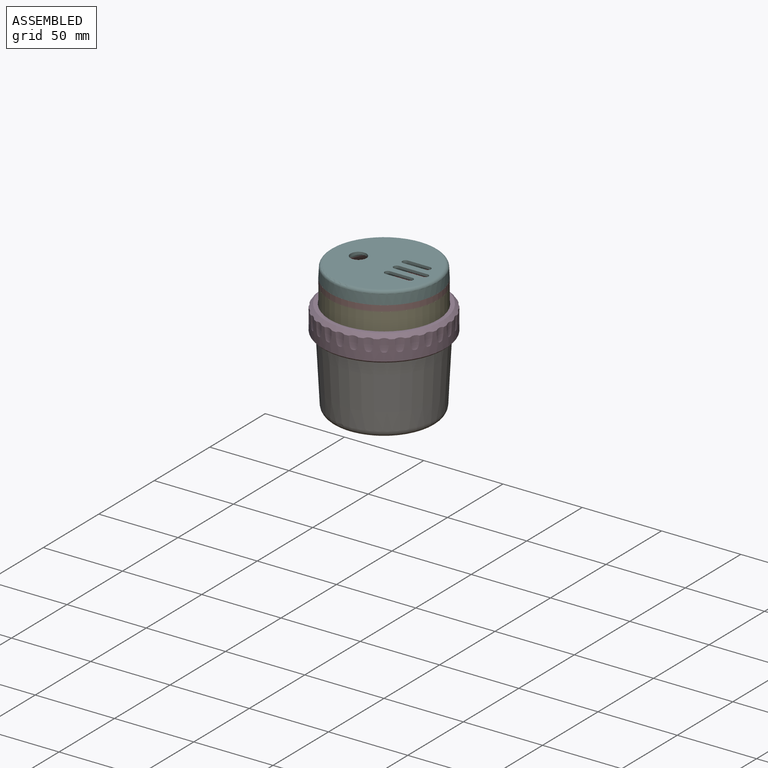
[diagram: assembled view]
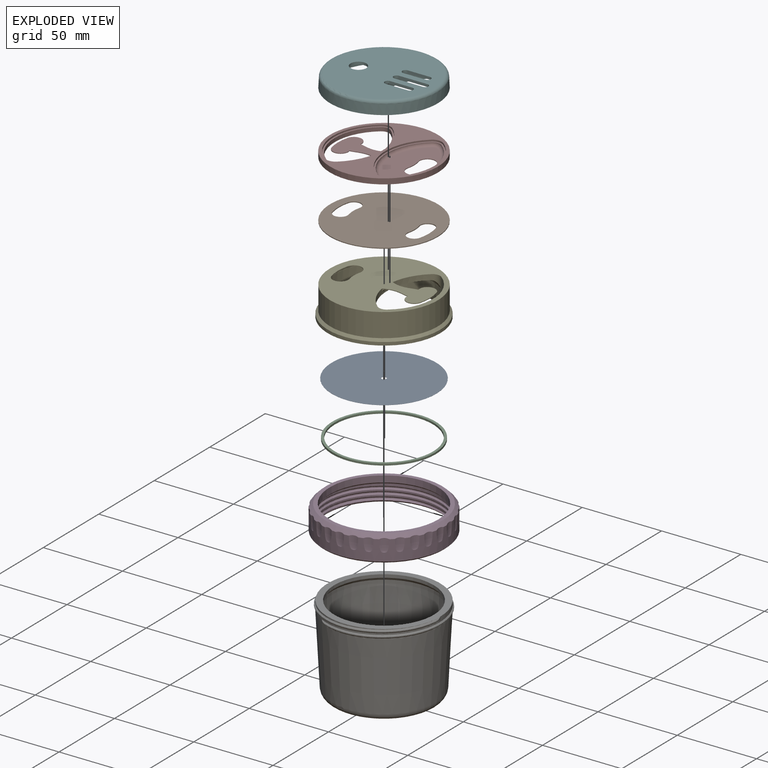
[diagram: exploded view]
GUIDED TOUR — MATED ASSEMBLY (Onshape document a46ee36c21d35e9a1c66735c, AutoMate assembly a46ee36c21d35e9a1c66735c_d8bfd531854b0f1bbb1e42d2_bb6d3bad4499264e819cd1c1_default)

This assembly has 8 components, labeled P0..P7 below (a component is one placed occurrence of a part; the same part can appear more than once), held together by 7 mates. A mate is a constraint between two components; its type names the relative motion it leaves free:
  CYLINDRICAL — leaves both rotation about and translation along the listed axis free,
  FASTENED — locks the two components together rigidly (no relative motion).
Axis/direction vectors are unit vectors and 'through' points are millimeter coordinates, both in the assembly's world frame.

MATES
  1. FASTENED "Fastened 3": P5 <-> P7, direction (0.000, 0.000, -1.000) through (0.00, 0.00, 3.40) mm
  2. CYLINDRICAL "Cylindrical 1": P3 <-> P4, axis (0.000, 0.000, 1.000) through (0.00, 0.00, -11.42) mm
  3. FASTENED "Fastened 4": P0 <-> P4, direction (0.000, 0.000, 1.000) through (0.00, 0.00, -17.90) mm
  4. FASTENED "Fastened 6": P6 <-> P2, direction (0.000, 0.000, 1.000) through (0.00, 0.00, -19.20) mm
  5. FASTENED "Fastened 5": P0 <-> P2, direction (0.000, 0.000, -1.000) through (0.00, 0.00, -18.00) mm
  6. FASTENED "Fastened 1": P1 <-> P7, direction (0.000, 0.000, 1.000) through (0.00, 0.00, 0.00) mm
  7. FASTENED "Fastened 2": P4 <-> P1, direction (0.000, 0.000, 1.000) through (0.00, 0.00, -0.50) mm

ASSEMBLY ORDER
  1. P4 — the base component [order heuristic]
  2. P1 [order verified]
  3. P7 [order verified]
  4. P0 — core [order heuristic]
  5. P2 — core [order heuristic]
  6. P3 — core [order heuristic]
  7. P5 [order verified]
  8. P6 — core [order heuristic]
Order-tag legend:
  [order verified] — this step's position reverses a verified removal order: the component was checked to insert without passing through the ones already placed.
  [order heuristic] — the first 5 components form the assembly's core: parts whose collision-free extraction could not be verified, listed in mate-graph order.

Of the 8 components, 4 carry the full construction recipe — the FeatureScript program that regenerates the part's solid from scratch; the rest are supplied as boundary geometry only.
Each toured component is shown spotlighted twice — in the assembled view, then in the exploded view, where a leader line traces a displaced component back to its assembled socket (saturated green if recipe-attached, orange if geometry-only; every other component desaturated gray) — followed by its recipe or geometry summary and the mates that hold it.
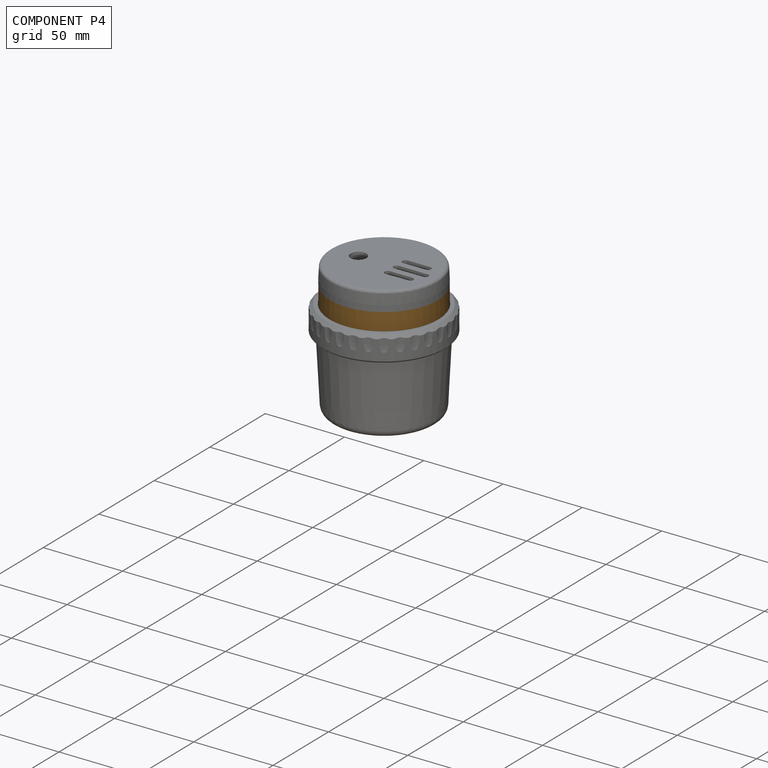
[diagram: component P4 — assembled]
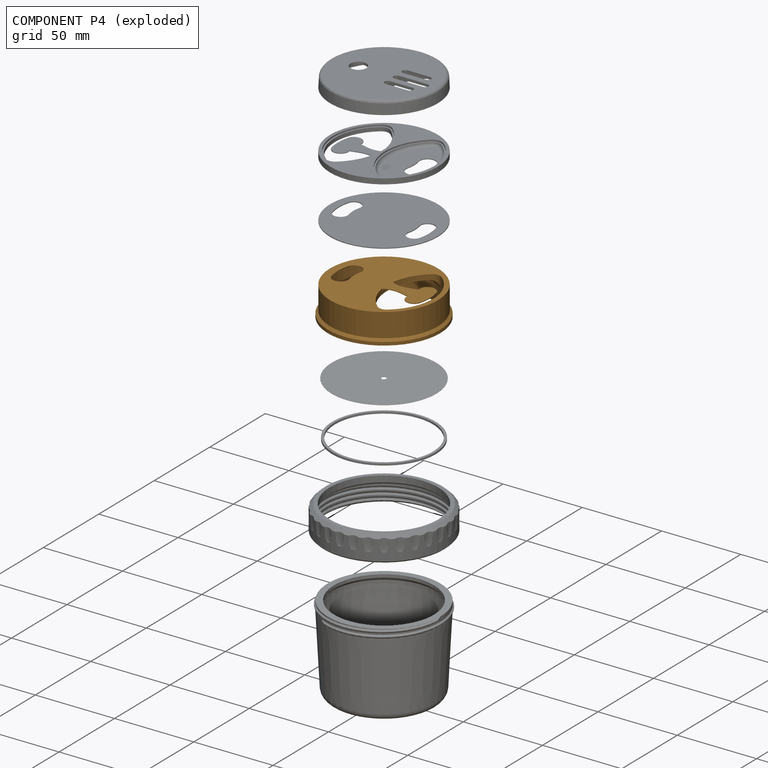
[diagram: component P4 — exploded]
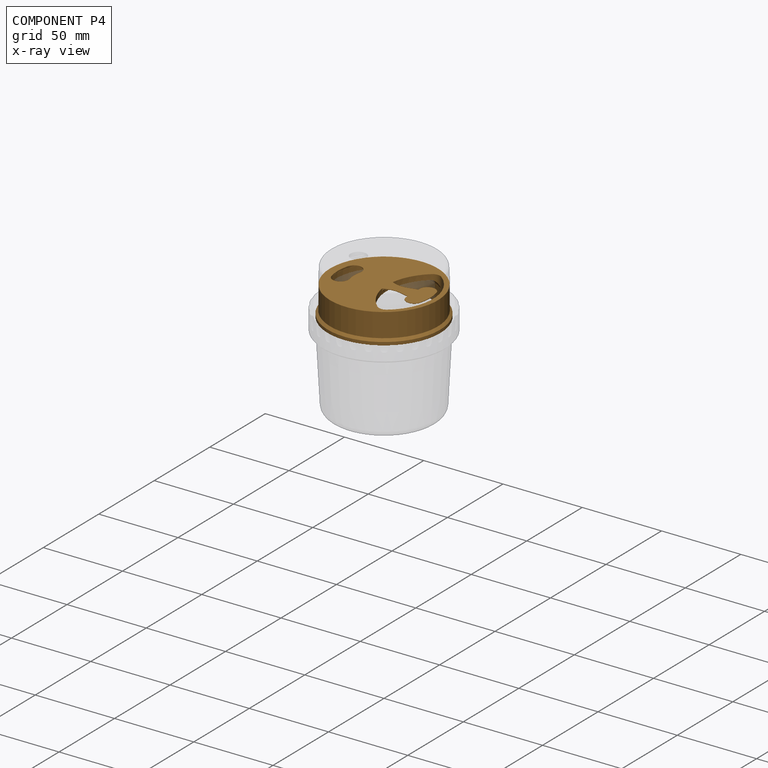
[diagram: component P4 — x-ray view]
COMPONENT P4 — geometry summary (no construction recipe available for this part):
  bounding box: 71.0 x 71.0 x 18.4 mm
  B-rep topology: 1 solid, 33 faces, 170 edges
  volume: 15465 mm^3 (17% of its bounding box)
  symmetry: mirror-symmetric across its y mid-plane
Held by: CYLINDRICAL mate "Cylindrical 1" to P3; FASTENED mate "Fastened 4" to P0; FASTENED mate "Fastened 2" to P1.
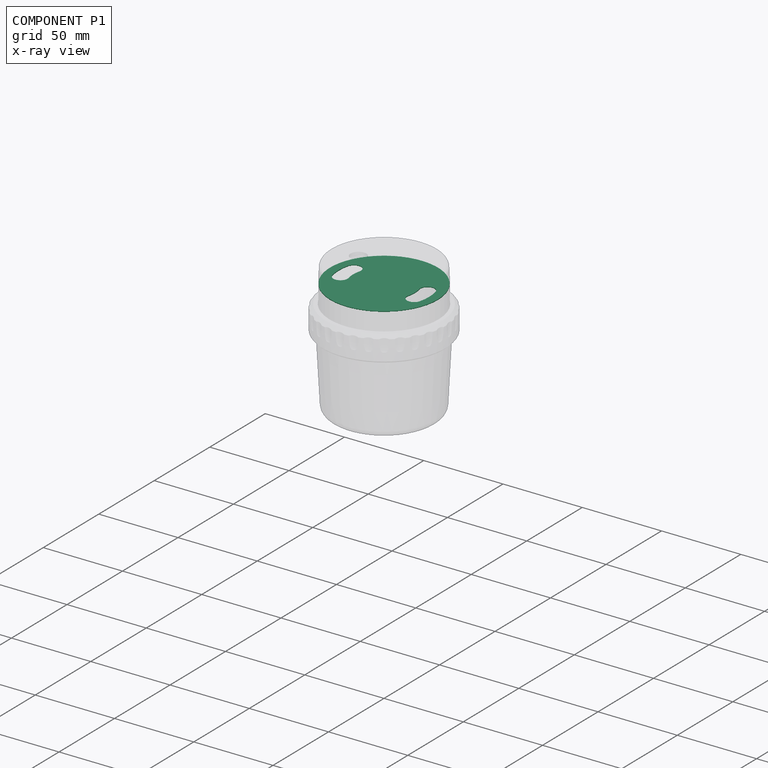
[diagram: component P1 — x-ray view]
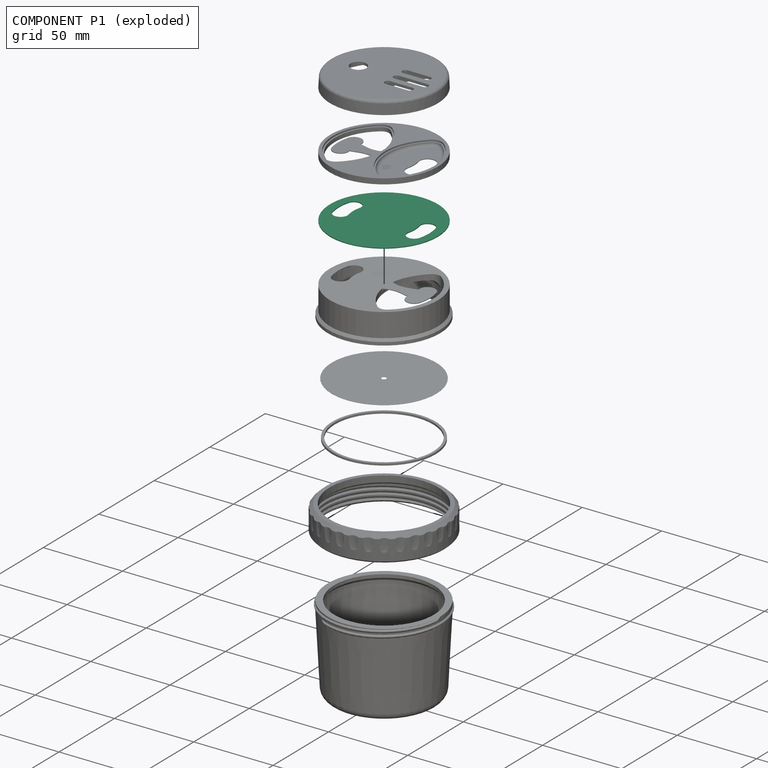
[diagram: component P1 — exploded]
COMPONENT P1 — recipe-attached (CADFS 00712857, mesh-verified: the recipe's output STEP matches this component's geometry to below the mesh-comparison resolution (tessellation chordal tolerance ~0.144 mm)).
Held by: FASTENED mate "Fastened 1" to P7; FASTENED mate "Fastened 2" to P4.
Construction recipe (FeatureScript — the CAD program that rebuilds this solid; sketch coordinates are in the units given by the * unit suffixes, e.g. mm):

FeatureScript 1511;
import(path : "onshape/std/geometry.fs", version : "1511.0");
import(path : "onshape/std/common.fs", version : "1511.0");
const mm = millimeter;
const VERTEX = EntityType.VERTEX;
const EDGE = EntityType.EDGE;
const FACE = EntityType.FACE;
const BODY = EntityType.BODY;
function v(x, y){return vector(x, y);}
function OD(order){return orderDisambiguation(order);}
function OSD(set){return originalSetDisambiguation(set);}
function TD(topology){return topologyDisambiguation(topology);}
function TDD(query){return trueDependencyDisambiguation(query);}
function sQuery(a, b, c) {return sketchEntityQuery(a, b, c);}

annotation { "Feature Type Name" : "Feature", "Feature Type Description" : "" }
export const myFeature = defineFeature(function(context is Context, id is Id, definition is map)
    precondition{}
    {
        {
            var Q0;
            Q0=qCreatedBy(makeId("Top.planeOp"),FACE);
            var sketch = newSketch(context, id + "F0", { "sketchPlane" : qUnion([Q0])});
            skCircle(sketch, "E0", {"center": v(0, 0) * mm, "radius": 34 * mm});
            skArc(sketch, "E1", {"start": v(-18.88, 4.88) * mm, "mid": v(-22.11, 10.36) * mm, "end": v(-27.6, 7.13) * mm});
            skArc(sketch, "E2.MirrorC", {"start": v(-18.88, -4.88) * mm, "mid": v(-22.11, -10.36) * mm, "end": v(-27.6, -7.13) * mm});
            skArc(sketch, "E3", {"start": v(-18.88, 4.88) * mm, "mid": v(-19.5, 0) * mm, "end": v(-18.88, -4.88) * mm});
            skArc(sketch, "E4", {"start": v(-27.6, 7.12) * mm, "mid": v(-28.5, 0) * mm, "end": v(-27.6, -7.12) * mm});
            skArc(sketch, "E5", {"start": v(-21.7, 10.23) * mm, "mid": v(-24, 0) * mm, "end": v(-21.7, -10.23) * mm, "construction": true});
            skArc(sketch, "E6.MirrorCS", {"start": v(18.88, 4.88) * mm, "mid": v(22.11, 10.36) * mm, "end": v(27.6, 7.13) * mm});
            skArc(sketch, "E7.MirrorCS", {"start": v(27.6, 7.12) * mm, "mid": v(28.5, 0) * mm, "end": v(27.6, -7.12) * mm});
            skArc(sketch, "E8.MirrorCS", {"start": v(18.88, -4.88) * mm, "mid": v(22.11, -10.36) * mm, "end": v(27.6, -7.13) * mm});
            skArc(sketch, "E9.MirrorCS", {"start": v(18.88, 4.88) * mm, "mid": v(19.5, 0) * mm, "end": v(18.88, -4.88) * mm});
            skSolve(sketch);
        }
        {
            var Q0;
            Q0 = qSketchRegion(id + "F0", true);
            extrude(context, id + "F1", {"entities" : qUnion([Q0]), "depth" : 0.5 * mm, "offsetDistance" : 25 * mm});
        }
    });
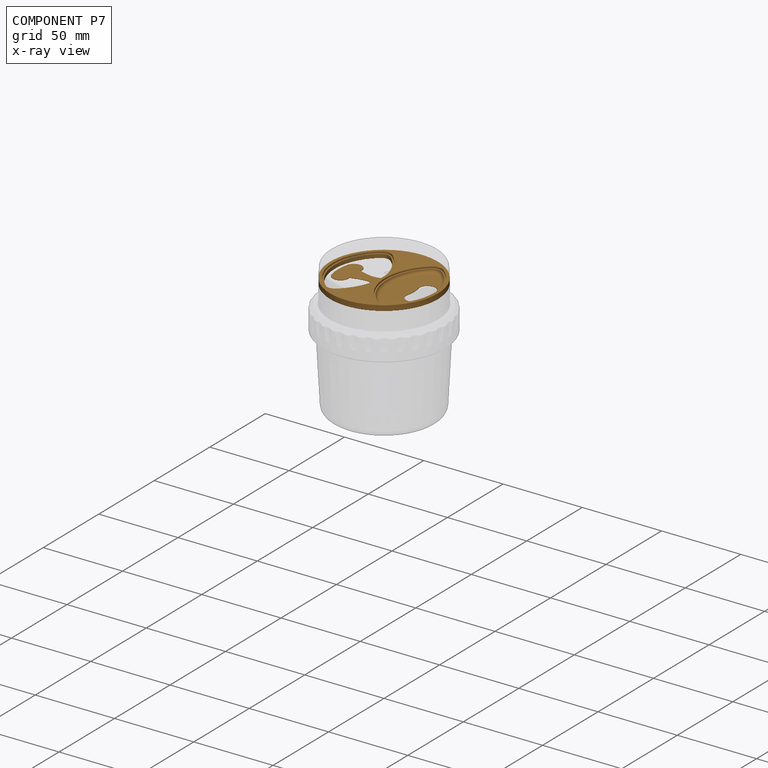
[diagram: component P7 — x-ray view]
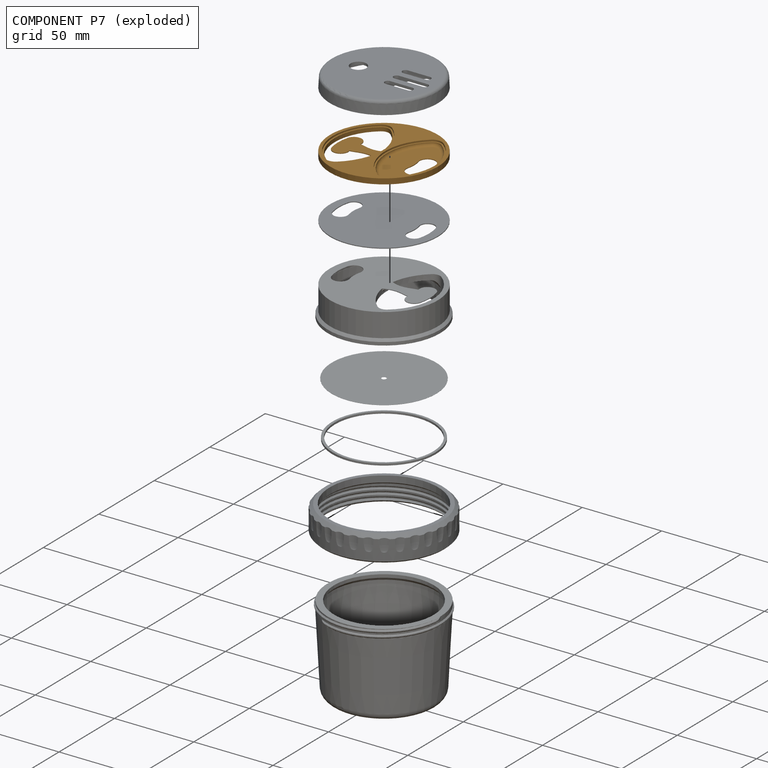
[diagram: component P7 — exploded]
COMPONENT P7 — geometry summary (no construction recipe available for this part):
  bounding box: 68.0 x 68.0 x 3.8 mm
  B-rep topology: 1 solid, 34 faces, 172 edges
  volume: 5285 mm^3 (30% of its bounding box)
  symmetry: mirror-symmetric across its y mid-plane
Held by: FASTENED mate "Fastened 3" to P5; FASTENED mate "Fastened 1" to P1.
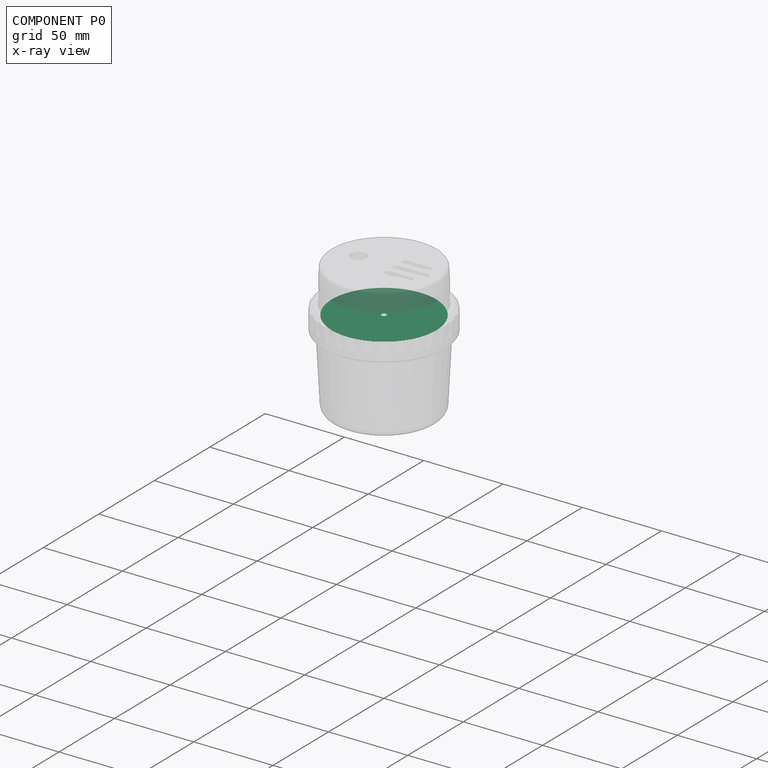
[diagram: component P0 — x-ray view]
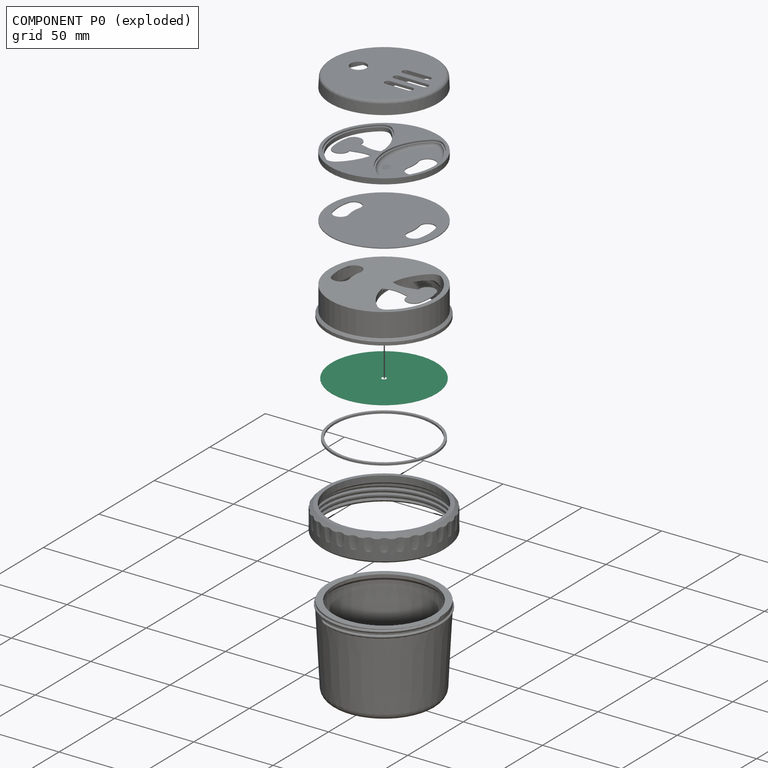
[diagram: component P0 — exploded]
COMPONENT P0 — recipe-attached (CADFS 00712860, mesh-verified: the recipe's output STEP matches this component's geometry to below the mesh-comparison resolution (tessellation chordal tolerance ~0.14 mm)).
Held by: FASTENED mate "Fastened 4" to P4; FASTENED mate "Fastened 5" to P2.
Construction recipe (FeatureScript — the CAD program that rebuilds this solid; sketch coordinates are in the units given by the * unit suffixes, e.g. mm):

FeatureScript 1511;
import(path : "onshape/std/geometry.fs", version : "1511.0");
import(path : "onshape/std/common.fs", version : "1511.0");
const mm = millimeter;
const VERTEX = EntityType.VERTEX;
const EDGE = EntityType.EDGE;
const FACE = EntityType.FACE;
const BODY = EntityType.BODY;
function v(x, y){return vector(x, y);}
function OD(order){return orderDisambiguation(order);}
function OSD(set){return originalSetDisambiguation(set);}
function TD(topology){return topologyDisambiguation(topology);}
function TDD(query){return trueDependencyDisambiguation(query);}
function sQuery(a, b, c) {return sketchEntityQuery(a, b, c);}

annotation { "Feature Type Name" : "Feature", "Feature Type Description" : "" }
export const myFeature = defineFeature(function(context is Context, id is Id, definition is map)
    precondition{}
    {
        {
            var Q0;
            Q0=qCreatedBy(makeId("Top.planeOp"),FACE);
            var sketch = newSketch(context, id + "F0", { "sketchPlane" : qUnion([Q0])});
            skCircle(sketch, "E0", {"center": v(0, 0) * mm, "radius": 33 * mm});
            skCircle(sketch, "E1", {"center": v(0, 0) * mm, "radius": 1.5 * mm});
            skSolve(sketch);
        }
        {
            var Q0;
            Q0 = qSketchRegion(id + "F0", true);
            extrude(context, id + "F1", {"entities" : qUnion([Q0]), "depth" : 0.1 * mm, "offsetDistance" : 25 * mm});
        }
    });
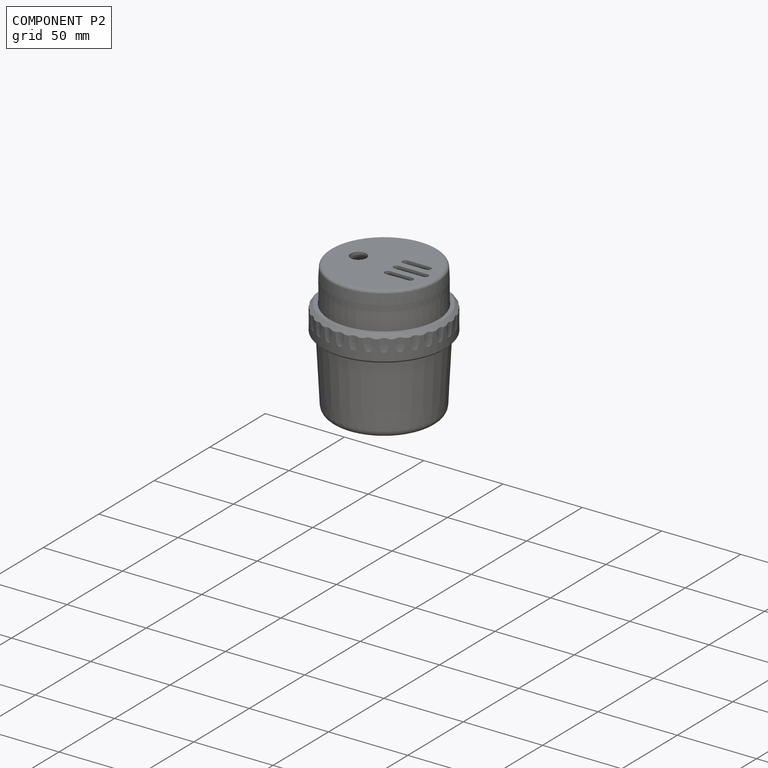
[diagram: component P2 — assembled]
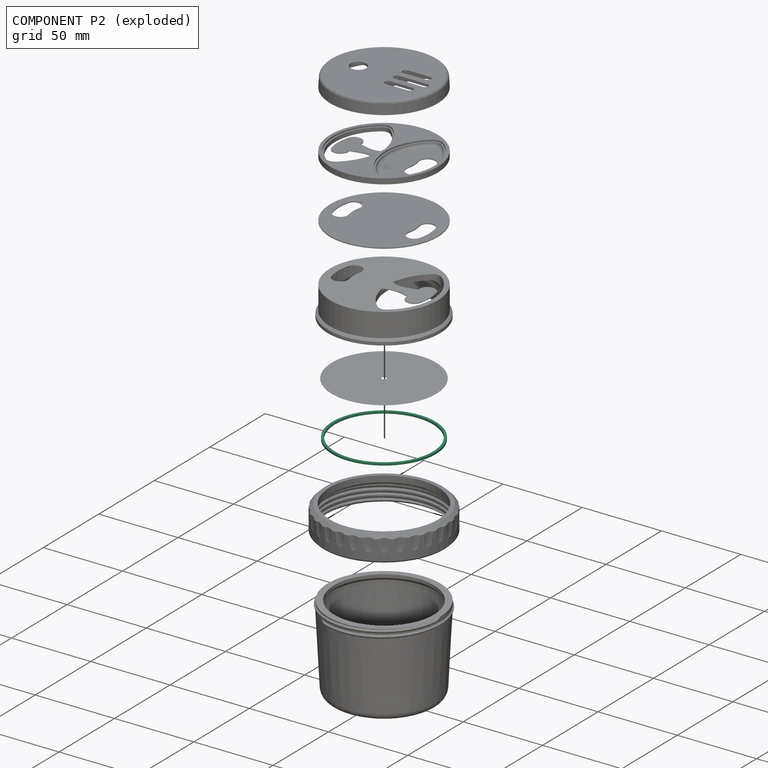
[diagram: component P2 — exploded]
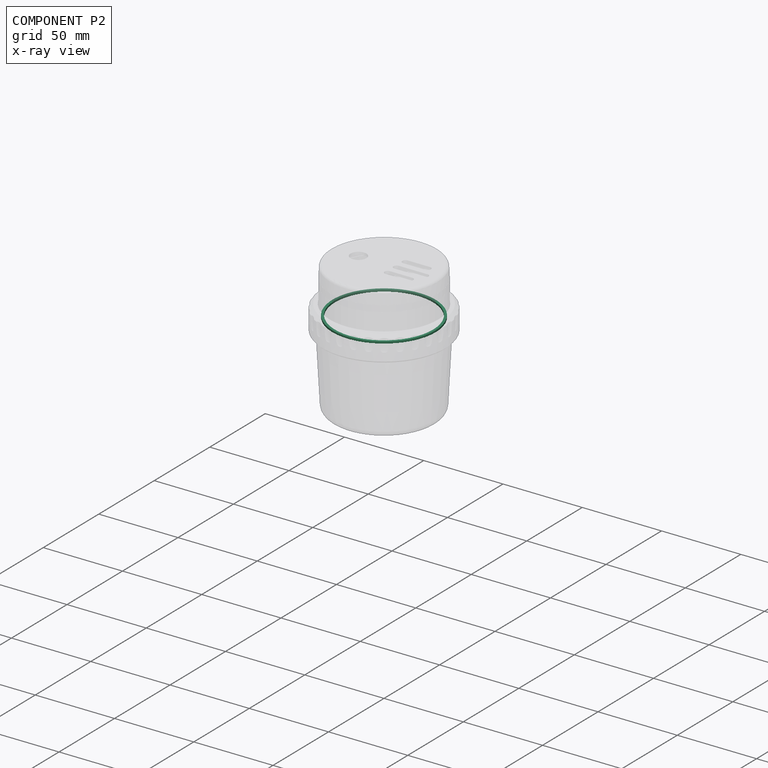
[diagram: component P2 — x-ray view]
COMPONENT P2 — recipe-attached (CADFS 00712859, mesh-verified: the recipe's output STEP matches this component's geometry to below the mesh-comparison resolution (tessellation chordal tolerance ~0.138 mm)).
Held by: FASTENED mate "Fastened 6" to P6; FASTENED mate "Fastened 5" to P0.
Construction recipe (FeatureScript — the CAD program that rebuilds this solid; sketch coordinates are in the units given by the * unit suffixes, e.g. mm):

FeatureScript 1511;
import(path : "onshape/std/geometry.fs", version : "1511.0");
import(path : "onshape/std/common.fs", version : "1511.0");
const mm = millimeter;
const VERTEX = EntityType.VERTEX;
const EDGE = EntityType.EDGE;
const FACE = EntityType.FACE;
const BODY = EntityType.BODY;
function v(x, y){return vector(x, y);}
function OD(order){return orderDisambiguation(order);}
function OSD(set){return originalSetDisambiguation(set);}
function TD(topology){return topologyDisambiguation(topology);}
function TDD(query){return trueDependencyDisambiguation(query);}
function sQuery(a, b, c) {return sketchEntityQuery(a, b, c);}

annotation { "Feature Type Name" : "Feature", "Feature Type Description" : "" }
export const myFeature = defineFeature(function(context is Context, id is Id, definition is map)
    precondition{}
    {
        {
            var Q0;
            Q0=qCreatedBy(makeId("Top.planeOp"),FACE);
            var sketch = newSketch(context, id + "F0", { "sketchPlane" : qUnion([Q0])});
            skCircle(sketch, "E0", {"center": v(0, 0) * mm, "radius": 31 * mm});
            skCircle(sketch, "E1.0", {"center": v(0, 0) * mm, "radius": 32.6 * mm});
            skSolve(sketch);
        }
        {
            var Q0;
            Q0 = qSketchRegion(id + "F0", true);
            extrude(context, id + "F1", {"entities" : qUnion([Q0]), "depth" : 1.2 * mm, "offsetDistance" : 25 * mm});
        }
    });
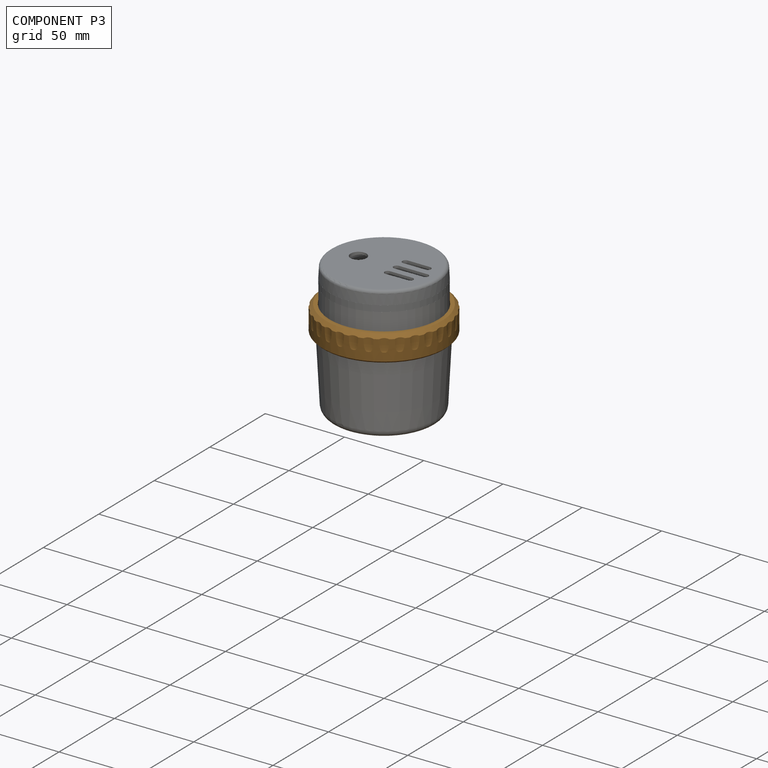
[diagram: component P3 — assembled]
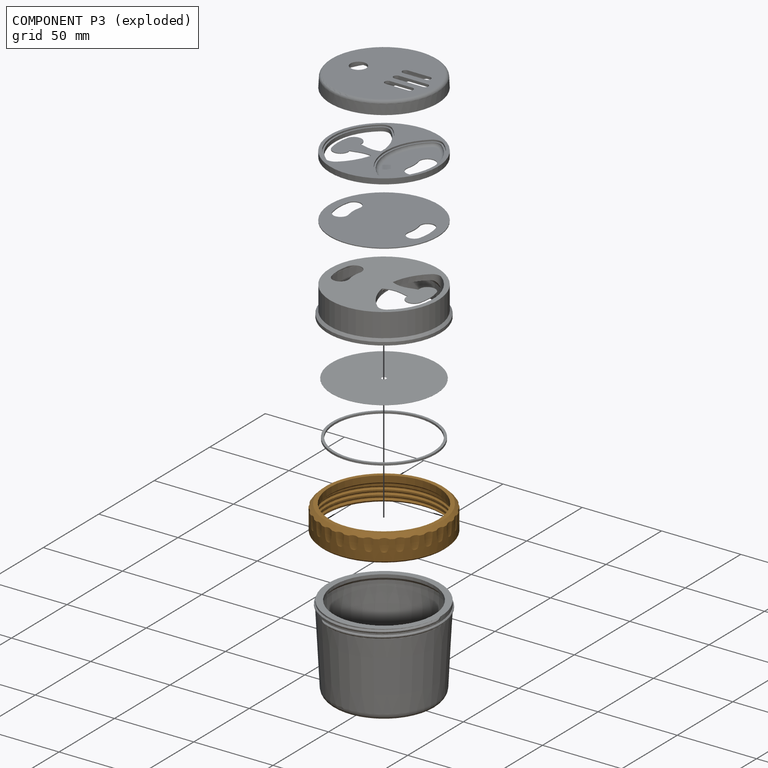
[diagram: component P3 — exploded]
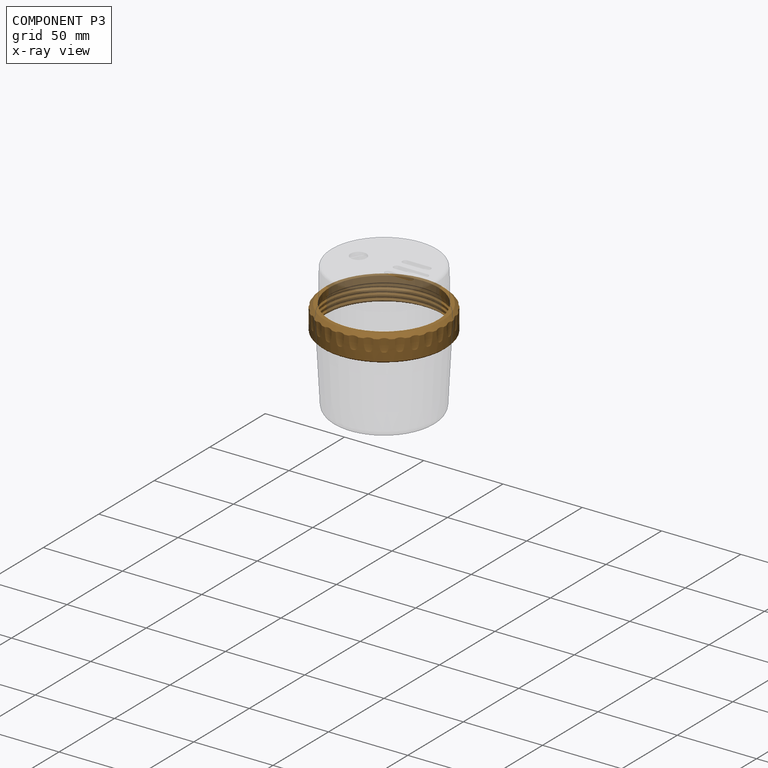
[diagram: component P3 — x-ray view]
COMPONENT P3 — geometry summary (no construction recipe available for this part):
  bounding box: 84.3 x 78.8 x 17.0 mm
  B-rep topology: 1 solid, 44 faces, 238 edges
  volume: 11749 mm^3 (10% of its bounding box)
Held by: CYLINDRICAL mate "Cylindrical 1" to P4.
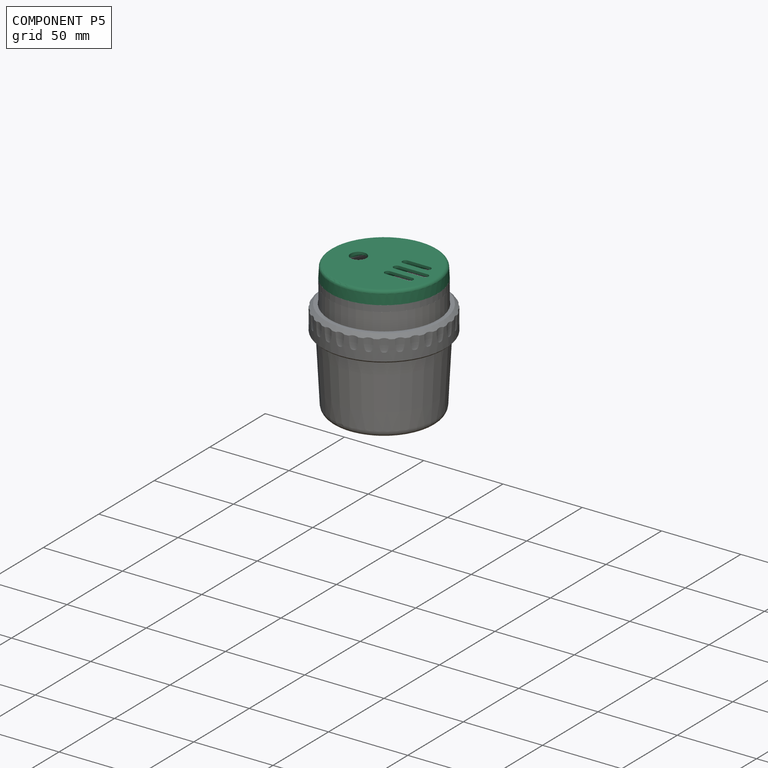
[diagram: component P5 — assembled]
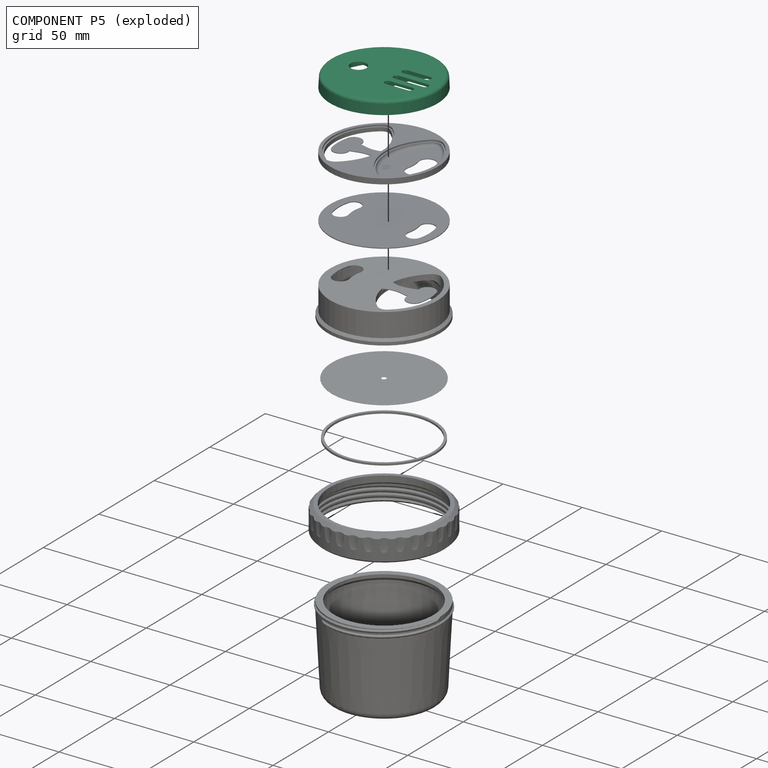
[diagram: component P5 — exploded]
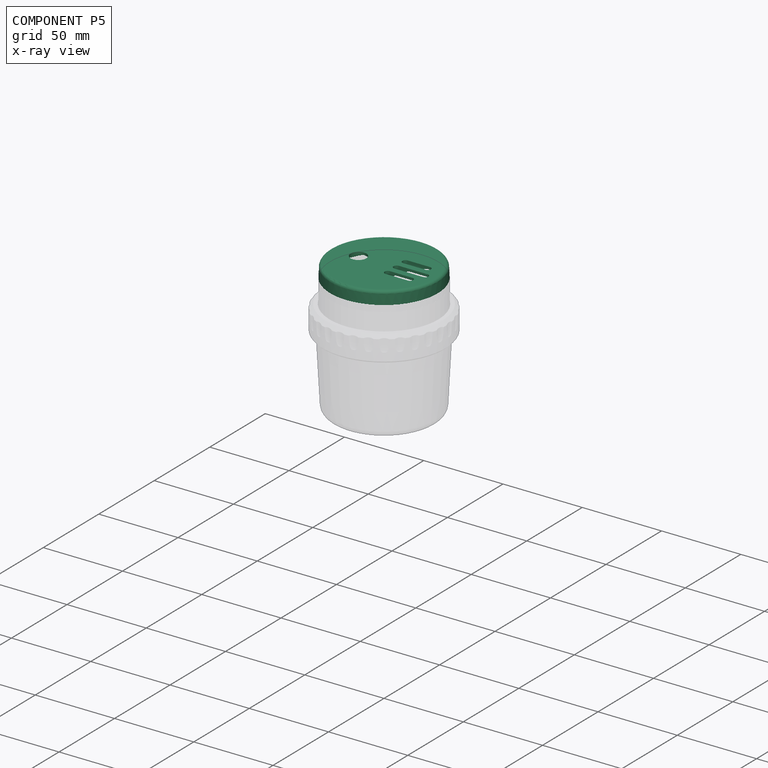
[diagram: component P5 — x-ray view]
COMPONENT P5 — recipe-attached (CADFS 00712858, mesh-verified: the recipe's output STEP matches this component's geometry to below the mesh-comparison resolution (tessellation chordal tolerance ~0.145 mm)).
Held by: FASTENED mate "Fastened 3" to P7.
Construction recipe (FeatureScript — the CAD program that rebuilds this solid; sketch coordinates are in the units given by the * unit suffixes, e.g. mm):

FeatureScript 1511;
import(path : "onshape/std/geometry.fs", version : "1511.0");
import(path : "onshape/std/common.fs", version : "1511.0");
const mm = millimeter;
const VERTEX = EntityType.VERTEX;
const EDGE = EntityType.EDGE;
const FACE = EntityType.FACE;
const BODY = EntityType.BODY;
function v(x, y){return vector(x, y);}
function OD(order){return orderDisambiguation(order);}
function OSD(set){return originalSetDisambiguation(set);}
function TD(topology){return topologyDisambiguation(topology);}
function TDD(query){return trueDependencyDisambiguation(query);}
function sQuery(a, b, c) {return sketchEntityQuery(a, b, c);}

annotation { "Feature Type Name" : "Feature", "Feature Type Description" : "" }
export const myFeature = defineFeature(function(context is Context, id is Id, definition is map)
    precondition{}
    {
        {
            var Q0;
            Q0=qCreatedBy(makeId("Top.planeOp"),FACE);
            var sketch = newSketch(context, id + "F0", { "sketchPlane" : qUnion([Q0])});
            skCircle(sketch, "E0", {"center": v(0, 0) * mm, "radius": 34 * mm});
            skSolve(sketch);
        }
        {
            var Q0;
            Q0 = qSketchRegion(id + "F0", true);
            extrude(context, id + "F1", {"entities" : qUnion([Q0]), "depth" : 8 * mm, "offsetDistance" : 25 * mm, "hasDraft" : true, "draftAngle" : 3 * degree, "draftPullDirection" : true});
        }
        {
            var Q0;
            Q0=makeQuery(id+"F1.opExtrude","CAP_FACE",FACE,{"disambiguationData":[OSD([sQuery(id+"F0.wireOp",EDGE,"E0")])],"isStart":true});
            var sketch = newSketch(context, id + "F2", { "sketchPlane" : qUnion([Q0])});
            skArc(sketch, "E1", {"start": v(-19.22, 24.33) * mm, "mid": v(-31, 0) * mm, "end": v(-19.22, -24.33) * mm});
            skArc(sketch, "E2", {"start": v(-12.84, -24.18) * mm, "mid": v(-1.8, 0) * mm, "end": v(-12.84, 24.18) * mm});
            skPoint(sketch, "E3.visualSharp", {"position": v(-15.97, 26.57) * mm});
            skArc(sketch, "E3.filletArc", {"start": v(-12.84, 24.18) * mm, "mid": v(-16, 25.4) * mm, "end": v(-19.22, 24.33) * mm});
            skPoint(sketch, "E4.visualSharp", {"position": v(-15.97, -26.57) * mm});
            skArc(sketch, "E4.filletArc", {"start": v(-19.22, -24.33) * mm, "mid": v(-16, -25.4) * mm, "end": v(-12.84, -24.18) * mm});
            skArc(sketch, "E5.MirrorCS", {"start": v(12.84, -24.18) * mm, "mid": v(1.8, 0) * mm, "end": v(12.84, 24.18) * mm});
            skArc(sketch, "E6.MirrorCS", {"start": v(12.84, 24.18) * mm, "mid": v(16, 25.4) * mm, "end": v(19.22, 24.33) * mm});
            skArc(sketch, "E7.MirrorCS", {"start": v(19.22, 24.33) * mm, "mid": v(31, 0) * mm, "end": v(19.22, -24.33) * mm});
            skArc(sketch, "E8.MirrorCS", {"start": v(19.22, -24.33) * mm, "mid": v(16, -25.4) * mm, "end": v(12.84, -24.18) * mm});
            skSolve(sketch);
        }
        {
            var Q0;
            Q0 = qSketchRegion(id + "F2", true);
            extrude(context, id + "F3", {"entities" : qUnion([Q0]), "operationType" : NewBodyOperationType.REMOVE, "oppositeDirection" : true, "depth" : (8 - 1.6) * mm, "offsetDistance" : 25 * mm, "hasDraft" : true, "draftAngle" : 3 * degree, "draftPullDirection" : true});
        }
        {
            var Q0;
            Q0=makeQuery(id+"F1.opExtrude","CAP_FACE",FACE,{"disambiguationData":[OSD([sQuery(id+"F0.wireOp",EDGE,"E0")])],"isStart":true});
            var sketch = newSketch(context, id + "F4", { "sketchPlane" : qUnion([Q0])});
            skArc(sketch, "E9.0", {"start": v(-19.22, 24.33) * mm, "mid": v(-31, 0) * mm, "end": v(-19.22, -24.33) * mm});
            skArc(sketch, "E10.0", {"start": v(-12.84, 24.18) * mm, "mid": v(-16, 25.4) * mm, "end": v(-19.22, 24.33) * mm});
            skArc(sketch, "E11.0", {"start": v(-12.84, -24.18) * mm, "mid": v(-1.8, 0) * mm, "end": v(-12.84, 24.18) * mm});
            skArc(sketch, "E12.0", {"start": v(-19.22, -24.33) * mm, "mid": v(-16, -25.4) * mm, "end": v(-12.84, -24.18) * mm});
            skArc(sketch, "E13.0", {"start": v(-12.19, 24.94) * mm, "mid": v(-15.98, 26.4) * mm, "end": v(-19.84, 25.11) * mm});
            skArc(sketch, "E13.1", {"start": v(-12.19, -24.94) * mm, "mid": v(-0.8, 0) * mm, "end": v(-12.19, 24.94) * mm});
            skArc(sketch, "E13.2", {"start": v(-19.84, -25.11) * mm, "mid": v(-15.98, -26.4) * mm, "end": v(-12.19, -24.94) * mm});
            skArc(sketch, "E13.3", {"start": v(-19.84, 25.11) * mm, "mid": v(-32, 0) * mm, "end": v(-19.84, -25.11) * mm});
            skArc(sketch, "E14.MirrorCS", {"start": v(19.84, 25.11) * mm, "mid": v(32, 0) * mm, "end": v(19.84, -25.11) * mm});
            skArc(sketch, "E15.MirrorCS", {"start": v(12.19, 24.94) * mm, "mid": v(15.98, 26.4) * mm, "end": v(19.84, 25.11) * mm});
            skArc(sketch, "E16.MirrorCS", {"start": v(12.19, -24.94) * mm, "mid": v(0.8, 0) * mm, "end": v(12.19, 24.94) * mm});
            skArc(sketch, "E17.MirrorCS", {"start": v(19.84, -25.11) * mm, "mid": v(15.98, -26.4) * mm, "end": v(12.19, -24.94) * mm});
            skArc(sketch, "E18.MirrorCS", {"start": v(19.22, 24.33) * mm, "mid": v(31, 0) * mm, "end": v(19.22, -24.33) * mm});
            skArc(sketch, "E19.MirrorCS", {"start": v(12.84, -24.18) * mm, "mid": v(1.8, 0) * mm, "end": v(12.84, 24.18) * mm});
            skArc(sketch, "E20.MirrorCS", {"start": v(12.84, 24.18) * mm, "mid": v(16, 25.4) * mm, "end": v(19.22, 24.33) * mm});
            skArc(sketch, "E21.MirrorCS", {"start": v(19.22, -24.33) * mm, "mid": v(16, -25.4) * mm, "end": v(12.84, -24.18) * mm});
            skSolve(sketch);
        }
        {
            var Q0;
            Q0 = qSketchRegion(id + "F4", true);
            extrude(context, id + "F5", {"entities" : qUnion([Q0]), "operationType" : NewBodyOperationType.ADD, "depth" : 0.8 * mm, "offsetDistance" : 25 * mm, "hasDraft" : true, "draftAngle" : 3 * degree, "draftPullDirection" : true});
        }
        {
            var Q0;
            Q0=makeQuery(id+"F1.opExtrude","CAP_EDGE",EDGE,{"disambiguationData":[OSD([sQuery(id+"F0.wireOp",EDGE,"E0")])],"isStart":false});
            var Q1;
            Q1=makeQuery(id+"F3.boolean.opBoolean","COPY",EDGE,{"derivedFrom":makeQuery(id+"F3.opExtrude","CAP_EDGE",EDGE,{"disambiguationData":[OSD([sQuery(id+"F2.wireOp",EDGE,"E1")])],"isStart":false})});
            var Q2;
            Q2=makeQuery(id+"F3.boolean.opBoolean","COPY",EDGE,{"derivedFrom":makeQuery(id+"F3.opExtrude","CAP_EDGE",EDGE,{"disambiguationData":[OSD([sQuery(id+"F2.wireOp",EDGE,"E5.MirrorCS")])],"isStart":false})});
            fillet(context, id + "F6", {"entities" : qUnion([Q0, Q1, Q2]), "radius" : 2 * mm, "tangentPropagation" : true, "allowEdgeOverflow" : false});
        }
        {
            var Q0;
            Q0=makeQuery(id+"F1.opExtrude","CAP_FACE",FACE,{"disambiguationData":[OSD([sQuery(id+"F0.wireOp",EDGE,"E0")])],"isStart":false});
            var sketch = newSketch(context, id + "F7", { "sketchPlane" : qUnion([Q0])});
            skArc(sketch, "E22.0.0", {"start": v(14.3, 22.5) * mm, "mid": v(16.05, 23.17) * mm, "end": v(17.83, 22.57) * mm, "construction": true});
            skArc(sketch, "E22.0.1", {"start": v(17.83, 22.57) * mm, "mid": v(28.77, 0) * mm, "end": v(17.83, -22.57) * mm, "construction": true});
            skArc(sketch, "E22.0.2", {"start": v(17.83, -22.57) * mm, "mid": v(16.05, -23.17) * mm, "end": v(14.3, -22.5) * mm, "construction": true});
            skArc(sketch, "E22.0.3", {"start": v(14.3, -22.5) * mm, "mid": v(4.03, 0) * mm, "end": v(14.3, 22.5) * mm, "construction": true});
            skLineSegment(sketch, "E23", {"start": v(16.12, 20.4) * mm, "end": v(16.12, -20.4) * mm, "construction": true});
            skPoint(sketch, "E24", {"position": v(16.12, 0) * mm});
            skSolve(sketch);
        }
        {
            var Q0;
            Q0=sQuery(id+"F7.wireOp",VERTEX,"E24");
            var Q1;
            Q1=makeQuery(id+"F1.opExtrude","SWEPT_BODY",BODY,{"disambiguationData":[OSD([sQuery(id+"F0.wireOp",EDGE,"E0")])]});
            hole(context, id + "F8", {"style" : HoleStyle.SIMPLE, "endStyle" : HoleEndStyle.THROUGH, "holeDiameter" : 10 * mm, "majorDiameter" : 5 * mm, "isTappedThrough" : true, "tappedDepth" : 12 * mm, "tapClearance" : 3, "locations" : qUnion([Q0]), "scope" : qUnion([Q1])});
        }
        {
            var Q0;
            Q0=makeQuery(id+"F1.opExtrude","CAP_FACE",FACE,{"disambiguationData":[OSD([sQuery(id+"F0.wireOp",EDGE,"E0")])],"isStart":false});
            var sketch = newSketch(context, id + "F9", { "sketchPlane" : qUnion([Q0])});
            skLineSegment(sketch, "E25.0.1.0", {"start": v(-8, -2) * mm, "end": v(-26, -2) * mm});
            skLineSegment(sketch, "E25.0.1.1", {"start": v(-8, 2) * mm, "end": v(-26, 2) * mm});
            skArc(sketch, "E25.0.1.2", {"start": v(-8, -2) * mm, "mid": v(-6, 0) * mm, "end": v(-8, 2) * mm});
            skArc(sketch, "E25.0.1.3", {"start": v(-26, 2) * mm, "mid": v(-28, 0) * mm, "end": v(-26, -2) * mm});
            skSolve(sketch);
        }
        {
            var Q0;
            Q0 = qSketchRegion(id + "F9", true);
            extrude(context, id + "F10", {"entities" : qUnion([Q0]), "operationType" : NewBodyOperationType.REMOVE, "endBound" : BoundingType.THROUGH_ALL, "oppositeDirection" : true, "depth" : 25 * mm, "offsetDistance" : 25 * mm});
        }
        {
            var Q0;
            Q0=makeQuery(id+"F1.opExtrude","CAP_FACE",FACE,{"disambiguationData":[OSD([sQuery(id+"F0.wireOp",EDGE,"E0")])],"isStart":false});
            var sketch = newSketch(context, id + "F11", { "sketchPlane" : qUnion([Q0])});
            skArc(sketch, "E26", {"start": v(-8, 6) * mm, "mid": v(-6, 8) * mm, "end": v(-8, 10) * mm});
            skArc(sketch, "E27", {"start": v(-22, 10) * mm, "mid": v(-24, 8) * mm, "end": v(-22, 6) * mm});
            skLineSegment(sketch, "E28", {"start": v(-22, 10) * mm, "end": v(-8, 10) * mm});
            skLineSegment(sketch, "E29", {"start": v(-22, 6) * mm, "end": v(-8, 6) * mm});
            skLineSegment(sketch, "E30", {"start": v(-8, 8) * mm, "end": v(-8, 0) * mm, "construction": true});
            skArc(sketch, "E31.MirrorCS", {"start": v(-8, -6) * mm, "mid": v(-6, -8) * mm, "end": v(-8, -10) * mm});
            skLineSegment(sketch, "E32.MirrorCS", {"start": v(-22, -10) * mm, "end": v(-8, -10) * mm});
            skLineSegment(sketch, "E33.MirrorCS", {"start": v(-22, -6) * mm, "end": v(-8, -6) * mm});
            skArc(sketch, "E34.MirrorCS", {"start": v(-22, -10) * mm, "mid": v(-24, -8) * mm, "end": v(-22, -6) * mm});
            skSolve(sketch);
        }
        {
            var Q0;
            Q0 = qSketchRegion(id + "F11", true);
            extrude(context, id + "F12", {"entities" : qUnion([Q0]), "operationType" : NewBodyOperationType.REMOVE, "endBound" : BoundingType.THROUGH_ALL, "oppositeDirection" : true, "depth" : 25 * mm, "offsetDistance" : 25 * mm});
        }
    });
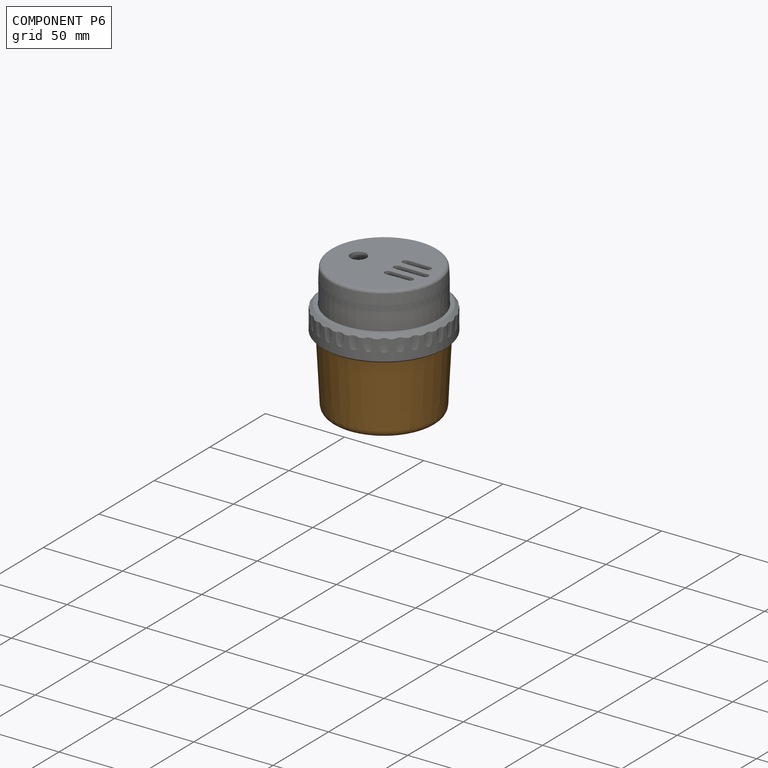
[diagram: component P6 — assembled]
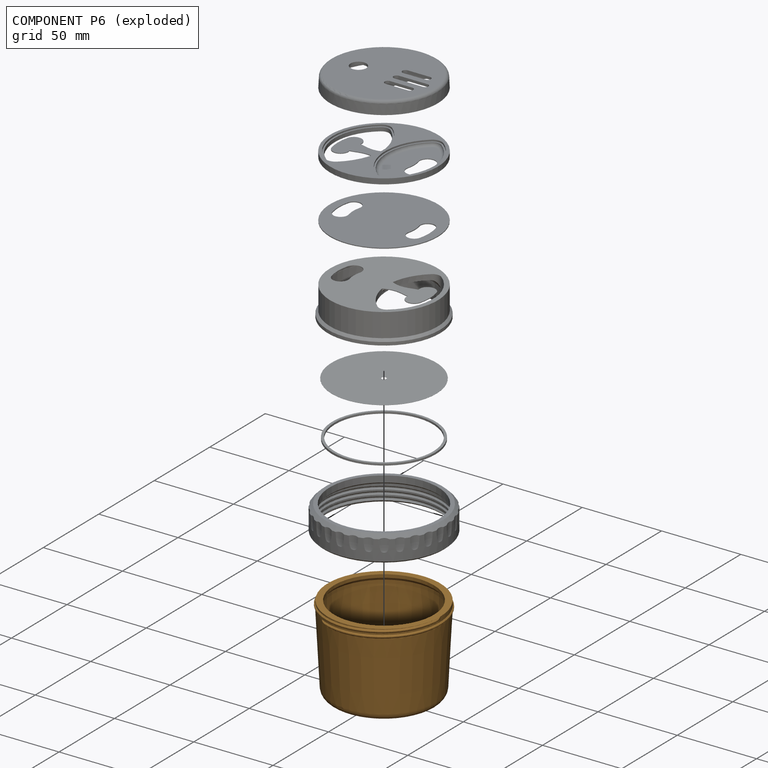
[diagram: component P6 — exploded]
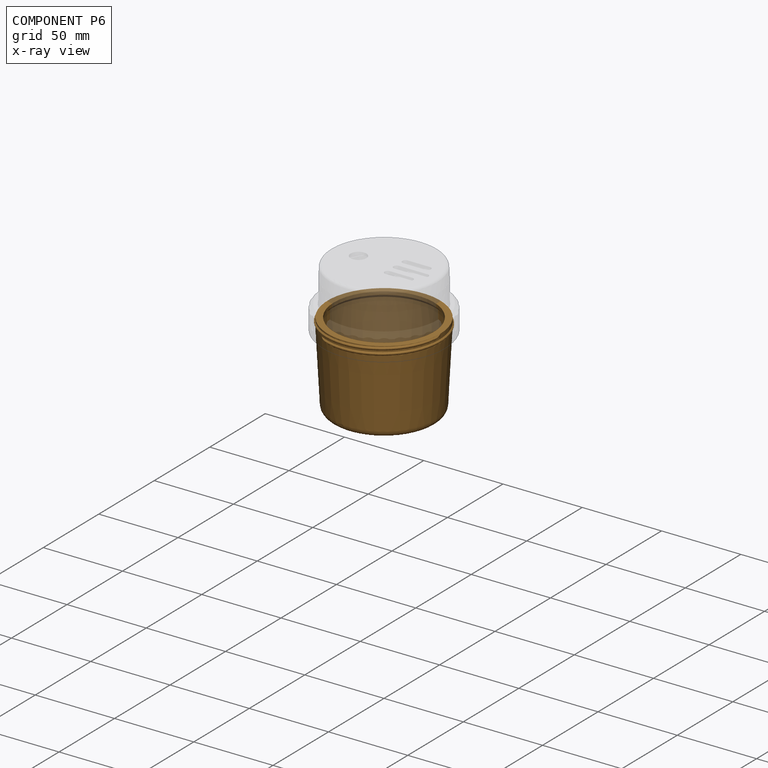
[diagram: component P6 — x-ray view]
COMPONENT P6 — geometry summary (no construction recipe available for this part):
  bounding box: 83.7 x 72.5 x 54.0 mm
  B-rep topology: 1 solid, 16 faces, 64 edges
  volume: 35894 mm^3 (11% of its bounding box)
  symmetry: revolution-symmetric about the z axis through its bounding-box center
Held by: FASTENED mate "Fastened 6" to P2.
PROVENANCE & LICENSES
Assembly (occurrences, transforms, mates, per-part STEP geometry): AutoMate dataset, Zenodo record 7776208, CC0.
Construction recipes: CADFS (HuggingFace VladPyatov/CADFS, CC-BY-4.0, layered over the ABC dataset), FeatureScript reconstruction programs keyed by ABC model id.
Join: ABC meta listings map ABC model id -> Onshape documentId; within a shared document, parts are matched by geometric signature (bounding-box dims + volume at 0.1% relative tolerance, exact B-rep face/solid counts).
Verification: 4 of this assembly's 8 components carry a recipe attachment, and every attachment is mesh-verified: the CADFS STEP and the AutoMate member STEP were compared as meshes in their shared local frame (symmetric sampled-point-to-mesh distance); worst across the 4 attachments: below the mesh-comparison resolution (tessellation chordal tolerance ~0.145 mm) on a 96 mm part.
Renders: orthographic iso camera (az 35 / el 25); the floor grid conveys scale (grid pitch printed in each image; no ruler). In the exploded view each component is displaced by its stored offset vector: the offsets alone carry the explosion direction (mate normal/axis signs are not orientation cues and do not encode it), and separation distances are assigned per mate-chain, not proportionally to assembly-order depth.
